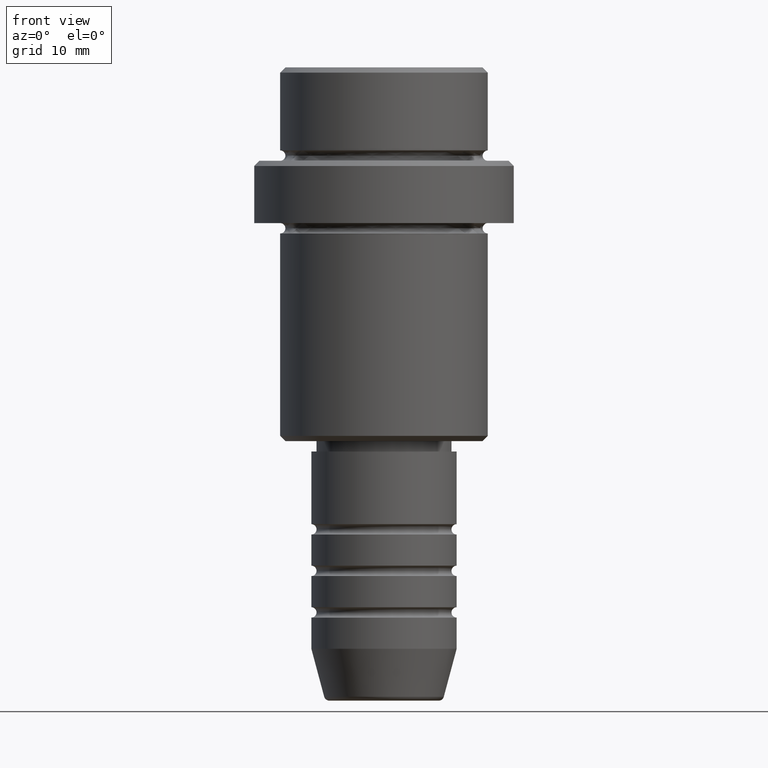
[diagram: clean part render]
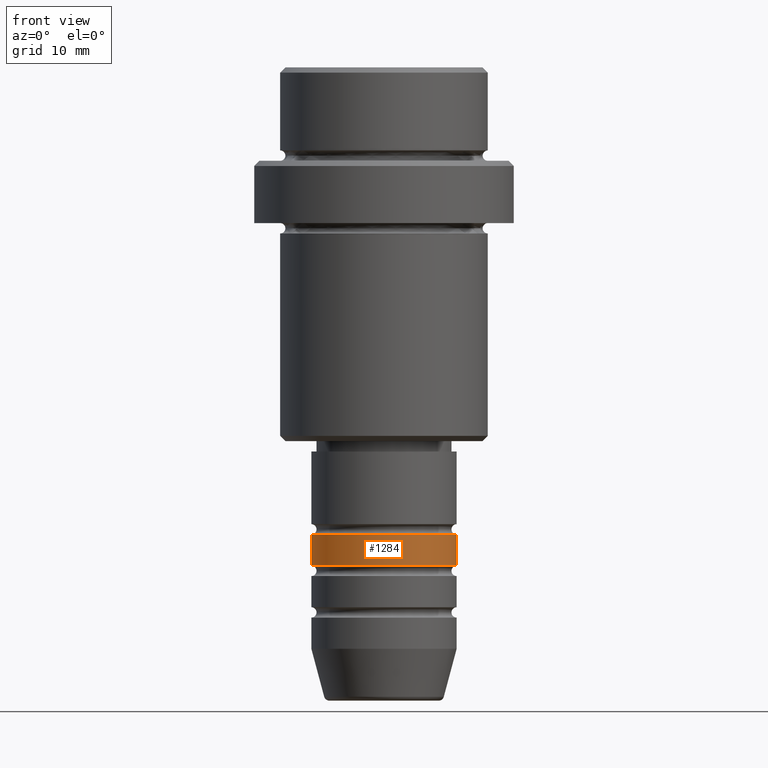
[diagram: same view with one face highlighted and labeled with its STEP entity id]
A machine part, front view. The second image highlights one B-rep face of the part: STEP entity #1284.
In plain terms, the highlighted cylindrical surface (partial cylindrical patch) has radius 7 mm, axis along (-0, -0, 1).
Its self-contained STEP definition (entity closure, byte-faithful):
#6 = ORIENTED_EDGE ( 'NONE', *, *, #635, .T. ) ;
#17 = AXIS2_PLACEMENT_3D ( 'NONE', #1302, #88, #1095 ) ;
#64 = CARTESIAN_POINT ( 'NONE',  ( 0.000000000000000000, 0.000000000000000000, -47.99999999999989342 ) ) ;
#88 = DIRECTION ( 'NONE',  ( -0.000000000000000000, -0.000000000000000000, 1.000000000000000000 ) ) ;
#134 = DIRECTION ( 'NONE',  ( -0.000000000000000000, -0.000000000000000000, 1.000000000000000000 ) ) ;
#144 = AXIS2_PLACEMENT_3D ( 'NONE', #549, #134, #908 ) ;
#146 = VERTEX_POINT ( 'NONE', #730 ) ;
#268 = AXIS2_PLACEMENT_3D ( 'NONE', #64, #1075, #854 ) ;
#382 = DIRECTION ( 'NONE',  ( -0.000000000000000000, -0.000000000000000000, 1.000000000000000000 ) ) ;
#386 = CIRCLE ( 'NONE', #144, 7.000000000000000000 ) ;
#409 = CIRCLE ( 'NONE', #268, 7.000000000000000000 ) ;
#448 = LINE ( 'NONE', #506, #799 ) ;
#467 = CARTESIAN_POINT ( 'NONE',  ( -7.000000000000000000, 8.572527594031473190E-16, 0.000000000000000000 ) ) ;
#468 = VERTEX_POINT ( 'NONE', #988 ) ;
#506 = CARTESIAN_POINT ( 'NONE',  ( 7.000000000000000000, 0.000000000000000000, 0.000000000000000000 ) ) ;
#515 = ORIENTED_EDGE ( 'NONE', *, *, #631, .T. ) ;
#549 = CARTESIAN_POINT ( 'NONE',  ( 0.000000000000000000, 0.000000000000000000, -44.99999999999989342 ) ) ;
#569 = ORIENTED_EDGE ( 'NONE', *, *, #1206, .F. ) ;
#631 = EDGE_CURVE ( 'NONE', #1238, #146, #448, .T. ) ;
#635 = EDGE_CURVE ( 'NONE', #850, #1238, #409, .T. ) ;
#654 = EDGE_LOOP ( 'NONE', ( #569, #6, #515, #1413 ) ) ;
#730 = CARTESIAN_POINT ( 'NONE',  ( 7.000000000000000000, 0.000000000000000000, -44.99999999999989342 ) ) ;
#799 = VECTOR ( 'NONE', #1388, 1000.000000000000000 ) ;
#808 = CARTESIAN_POINT ( 'NONE',  ( 7.000000000000000000, 0.000000000000000000, -47.99999999999989342 ) ) ;
#850 = VERTEX_POINT ( 'NONE', #1386 ) ;
#854 = DIRECTION ( 'NONE',  ( 1.000000000000000000, 0.000000000000000000, 0.000000000000000000 ) ) ;
#908 = DIRECTION ( 'NONE',  ( 1.000000000000000000, 0.000000000000000000, 0.000000000000000000 ) ) ;
#923 = VECTOR ( 'NONE', #382, 1000.000000000000000 ) ;
#988 = CARTESIAN_POINT ( 'NONE',  ( -7.000000000000000000, 8.572527594031473190E-16, -44.99999999999989342 ) ) ;
#1057 = LINE ( 'NONE', #467, #923 ) ;
#1075 = DIRECTION ( 'NONE',  ( -0.000000000000000000, -0.000000000000000000, 1.000000000000000000 ) ) ;
#1079 = FACE_OUTER_BOUND ( 'NONE', #654, .T. ) ;
#1094 = EDGE_CURVE ( 'NONE', #468, #146, #386, .T. ) ;
#1095 = DIRECTION ( 'NONE',  ( 1.000000000000000000, 0.000000000000000000, 0.000000000000000000 ) ) ;
#1172 = CYLINDRICAL_SURFACE ( 'NONE', #17, 7.000000000000000000 ) ;
#1206 = EDGE_CURVE ( 'NONE', #850, #468, #1057, .T. ) ;
#1238 = VERTEX_POINT ( 'NONE', #808 ) ;
#1284 = ADVANCED_FACE ( 'NONE', ( #1079 ), #1172, .T. ) ;
#1302 = CARTESIAN_POINT ( 'NONE',  ( 0.000000000000000000, 0.000000000000000000, 0.000000000000000000 ) ) ;
#1386 = CARTESIAN_POINT ( 'NONE',  ( -7.000000000000000000, 8.572527594031473190E-16, -47.99999999999989342 ) ) ;
#1388 = DIRECTION ( 'NONE',  ( -0.000000000000000000, -0.000000000000000000, 1.000000000000000000 ) ) ;
#1413 = ORIENTED_EDGE ( 'NONE', *, *, #1094, .F. ) ;